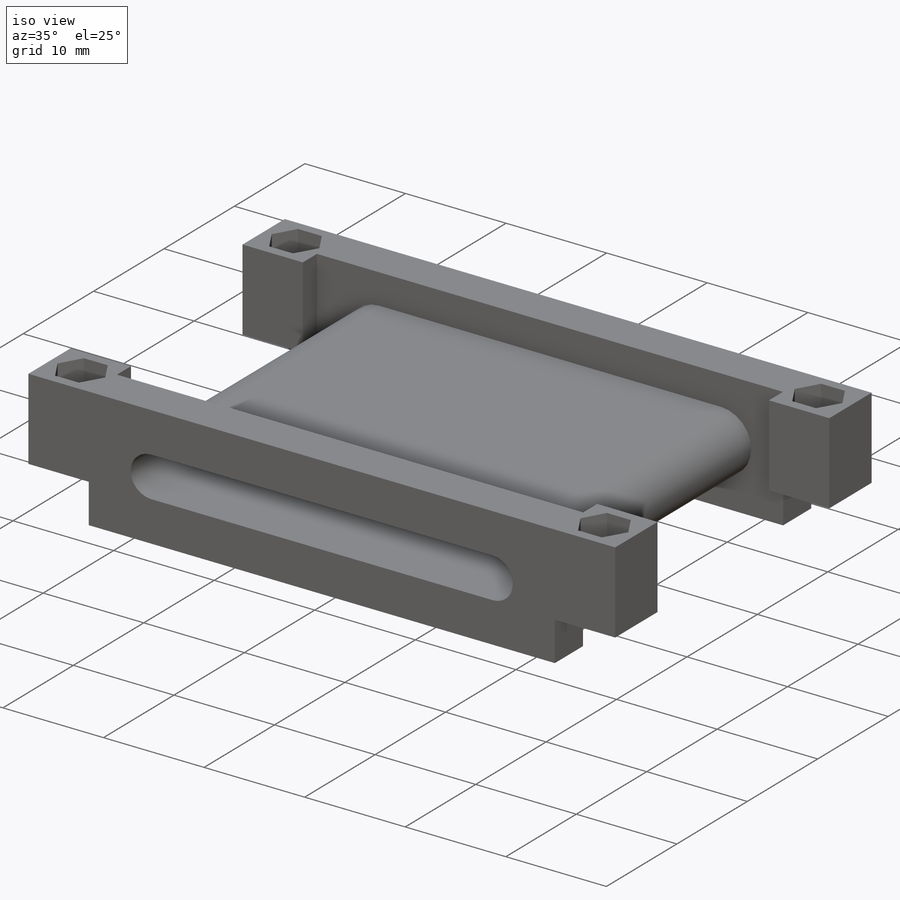
[diagram: iso view]
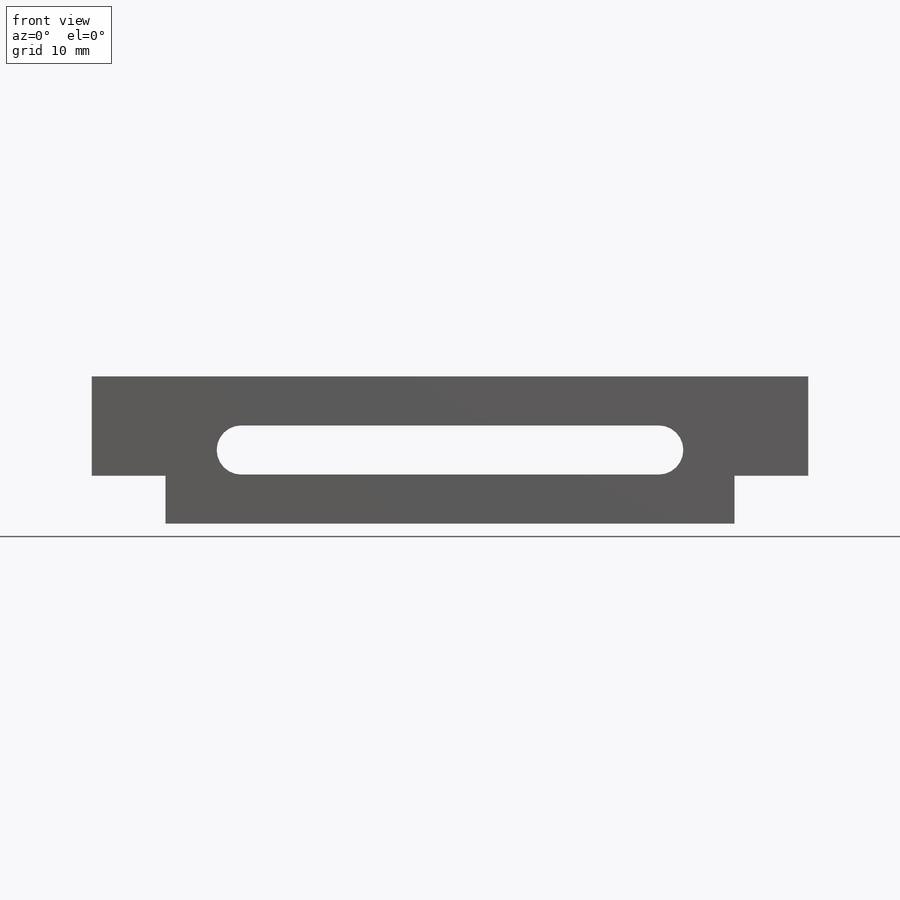
[diagram: front view]
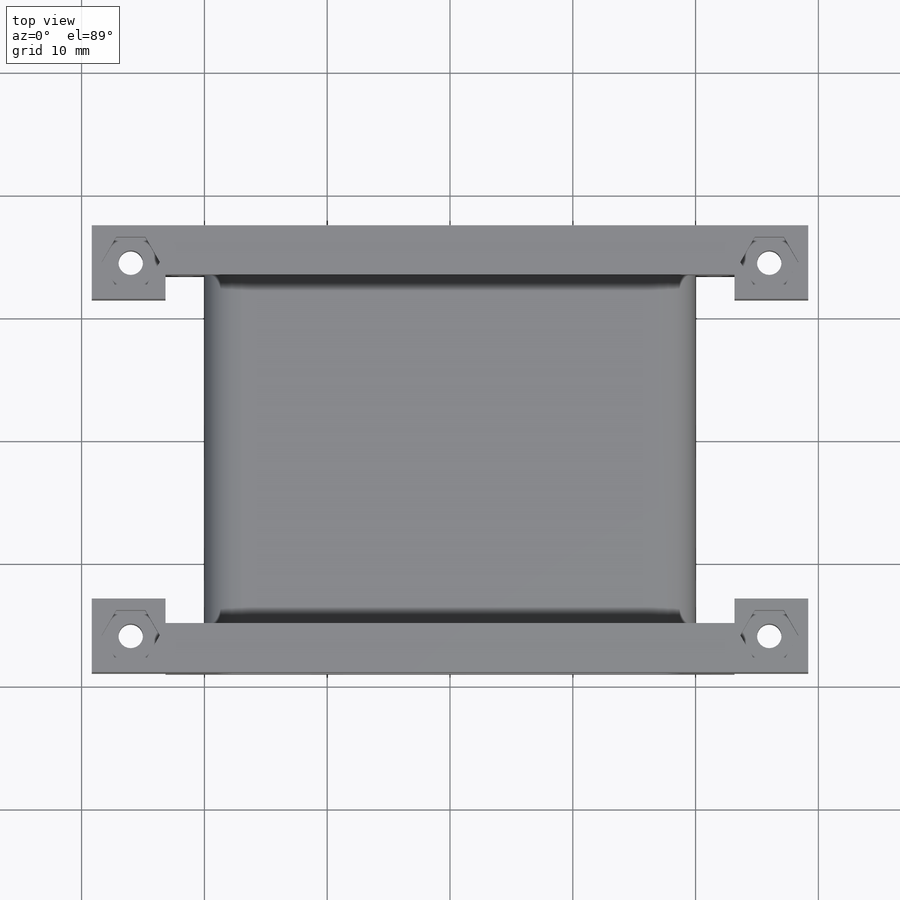
[diagram: top view]
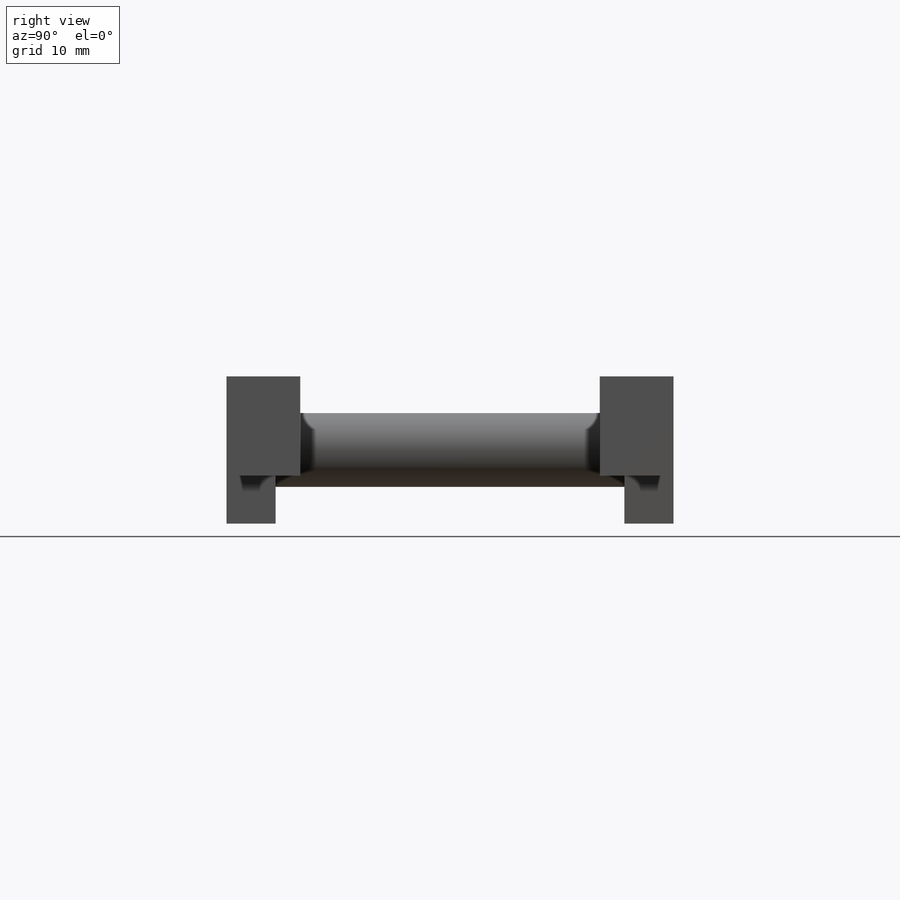
[diagram: right view]
SOLIDWORKS PART (.sldprt)
format: sldprt  version: not decoded by parser v0  size: 474,112 bytes
history: native  units: mm
features: sketch x16, cut_extrude x9, extrude x7, plane x3, delete_body x2, material x1, mirror x1 (+9 scaffold rows collapsed)
feature tree (48):
  scaffold x9  (default folders/planes/origin — collapsed)
  material  "Material <não especificado>"
  plane  "Plano frontal"
  plane  "Plano superior"
  plane  "Plano direito"
  sketch  "Esboço1"  dims[D1=58.0mm D2=6.0mm]
  extrude  "Ressalto-extrusão1"  Depth=8.6mm
  sketch  "Esboço2"  dims[D1=47.9mm]
  extrude  "Ressalto-extrusão2"  Depth=3.4mm
  sketch  "Esboço4"  dims[D1=17.0mm D2=2.0mm D3=6.0mm]
  cut_extrude  "Corte-extrusão2"  [1 undecoded]
  mirror  "Espelhar1"
  delete_body  "Corpo-Excluir1"
  sketch  "Esboço8"
  cut_extrude  "Corte-extrusão3"  Depth=0.5mm
  sketch  "Esboço9"  dims[c1.D1=6.0mm c1.D2=6.0mm c2.D1=3.0mm c2.D3=2.0mm c3.D1=46.0mm]
  cut_extrude  "Corte-extrusão4"  [1 undecoded]
  sketch  "Esboço10"  dims[D1=2.0mm]
  cut_extrude  "Corte-extrusão5"  [1 undecoded]
  sketch  "Esboço11"
  cut_extrude  "Corte-extrusão6"  [1 undecoded]
  sketch  "Esboço15"  dims[D1=0.0mm]
  extrude  "Ressalto-extrusão4"  Depth=0.17mm
  sketch  "Esboço16"  dims[D3=2.0mm D4=2.0mm D1=4.1mm D2=4.1mm]
  cut_extrude  "Corte-extrusão9"  Depth=2.5mm
  cut_extrude  "Corte-extrusão10"  [1 undecoded]
  sketch  "Esboço16<4>"
  sketch  "Esboço17"  dims[D1=1.0mm]
  extrude  "Ressalto-extrusão5"  Depth=14.2mm
  sketch  "Esboço18"  dims[D1=0.0mm]
  cut_extrude  "Corte-extrusão11"  Depth=0.17mm
  sketch  "Esboço19"  dims[D1=0.0mm]
  cut_extrude  "Corte-extrusão12"  Depth=0.17mm
  sketch  "Esboço20"  dims[D1=0.0mm]
  extrude  "Ressalto-extrusão6"  Depth=0.17mm
  sketch  "Esboço23"  dims[D1=0.0mm]
  extrude  "Ressalto-extrusão9"  Depth=0.17mm
  sketch  "Esboço24"  dims[D1=0.0mm]
  extrude  "Ressalto-extrusão10"  Depth=0.17mm
  delete_body  "Espelhar2"
decode coverage: 24 of 35 modeling features carry decoded parameters
note: 5 parameter values undecoded
summary: no parameter record found for 5 features
note: suppression state not decoded; provenance and decode notes live in map.json
